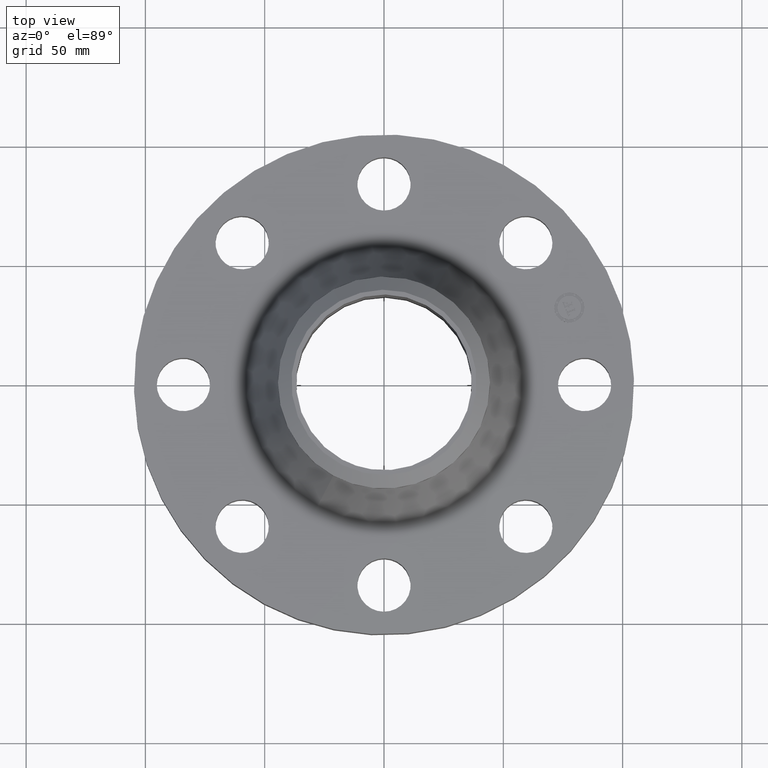
[diagram: clean part render]
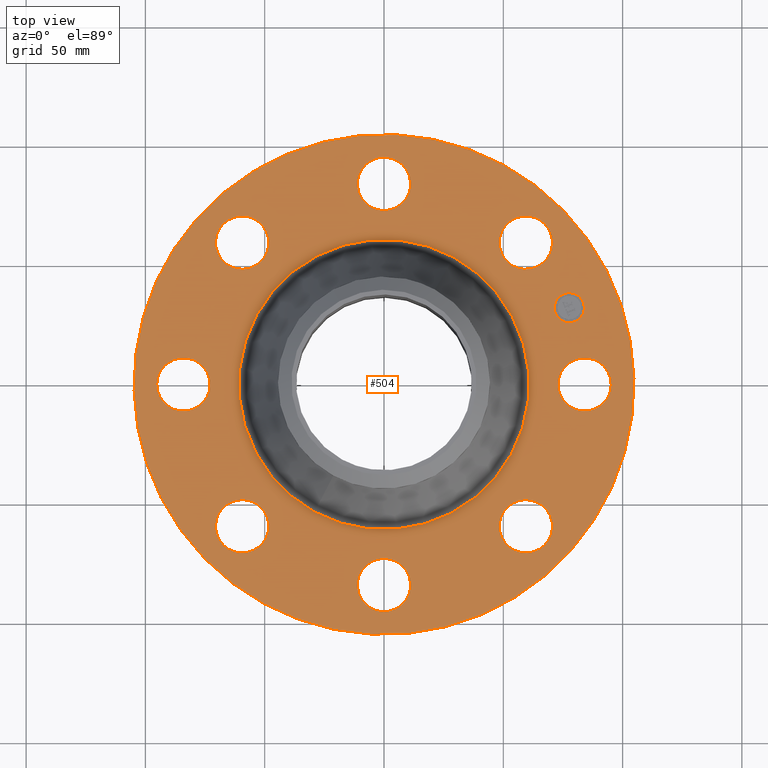
[diagram: same view with one face highlighted and labeled with its STEP entity id]
A machine part, top view. The second image highlights one B-rep face of the part: STEP entity #504.
In plain terms, the highlighted planar face has unit normal (0, 0, -1).
Its self-contained STEP definition (entity closure, byte-faithful):
#65=AXIS2_PLACEMENT_3D('Circle Axis2P3D',#63,#64,$) ;
#318=AXIS2_PLACEMENT_3D('Plane Axis2P3D',#315,#316,#317) ;
#322=AXIS2_PLACEMENT_3D('Circle Axis2P3D',#320,#321,$) ;
#331=AXIS2_PLACEMENT_3D('Circle Axis2P3D',#329,#330,$) ;
#344=AXIS2_PLACEMENT_3D('Circle Axis2P3D',#342,#343,$) ;
#353=AXIS2_PLACEMENT_3D('Circle Axis2P3D',#351,#352,$) ;
#362=AXIS2_PLACEMENT_3D('Circle Axis2P3D',#360,#361,$) ;
#371=AXIS2_PLACEMENT_3D('Circle Axis2P3D',#369,#370,$) ;
#380=AXIS2_PLACEMENT_3D('Circle Axis2P3D',#378,#379,$) ;
#389=AXIS2_PLACEMENT_3D('Circle Axis2P3D',#387,#388,$) ;
#398=AXIS2_PLACEMENT_3D('Circle Axis2P3D',#396,#397,$) ;
#407=AXIS2_PLACEMENT_3D('Circle Axis2P3D',#405,#406,$) ;
#416=AXIS2_PLACEMENT_3D('Circle Axis2P3D',#414,#415,$) ;
#425=AXIS2_PLACEMENT_3D('Circle Axis2P3D',#423,#424,$) ;
#434=AXIS2_PLACEMENT_3D('Circle Axis2P3D',#432,#433,$) ;
#443=AXIS2_PLACEMENT_3D('Circle Axis2P3D',#441,#442,$) ;
#452=AXIS2_PLACEMENT_3D('Circle Axis2P3D',#450,#451,$) ;
#461=AXIS2_PLACEMENT_3D('Circle Axis2P3D',#459,#460,$) ;
#470=AXIS2_PLACEMENT_3D('Circle Axis2P3D',#468,#469,$) ;
#479=AXIS2_PLACEMENT_3D('Circle Axis2P3D',#477,#478,$) ;
#488=AXIS2_PLACEMENT_3D('Circle Axis2P3D',#486,#487,$) ;
#497=AXIS2_PLACEMENT_3D('Circle Axis2P3D',#495,#496,$) ;
#46=CARTESIAN_POINT('Vertex',(2.92386367278,0.210947236987,1.05999999999)) ;
#60=CARTESIAN_POINT('Vertex',(3.69613632724,-0.210947236984,1.05999999999)) ;
#63=CARTESIAN_POINT('Axis2P3D Location',(3.31000000001,0.,1.05999999999)) ;
#106=CARTESIAN_POINT('Control Point',(3.69613632724,-0.210947236987,1.05999999999)) ;
#107=CARTESIAN_POINT('Control Point',(3.66300081274,-0.271601389433,1.05999999999)) ;
#108=CARTESIAN_POINT('Control Point',(3.61795588326,-0.325749398821,1.05999999999)) ;
#109=CARTESIAN_POINT('Control Point',(3.5626953225,-0.370262840224,1.05999999999)) ;
#110=CARTESIAN_POINT('Control Point',(3.43769808393,-0.435223603166,1.05999999999)) ;
#111=CARTESIAN_POINT('Control Point',(3.29741808449,-0.448097302225,1.05999999999)) ;
#112=CARTESIAN_POINT('Control Point',(3.22686721097,-0.440497941251,1.05999999999)) ;
#113=CARTESIAN_POINT('Control Point',(3.09254661997,-0.398045742217,1.05999999999)) ;
#114=CARTESIAN_POINT('Control Point',(2.98425060119,-0.307955883249,1.06)) ;
#115=CARTESIAN_POINT('Control Point',(2.93973715979,-0.252695322491,1.06)) ;
#116=CARTESIAN_POINT('Control Point',(2.87477639684,-0.127698083922,1.06)) ;
#117=CARTESIAN_POINT('Control Point',(2.86190269778,0.0125819155223,1.06)) ;
#118=CARTESIAN_POINT('Control Point',(2.86950205876,0.0831327890369,1.06)) ;
#119=CARTESIAN_POINT('Control Point',(2.89072815828,0.150293084541,1.06)) ;
#120=CARTESIAN_POINT('Control Point',(2.92386367278,0.210947236987,1.06)) ;
#315=CARTESIAN_POINT('Axis2P3D Location',(0.,4.12500000002,1.06)) ;
#320=CARTESIAN_POINT('Axis2P3D Location',(-1.1189649382E-015,5.33354637795E-012,1.06)) ;
#324=CARTESIAN_POINT('Vertex',(1.97763034678,3.62002806783,1.06)) ;
#326=CARTESIAN_POINT('Vertex',(-1.97763034675,-3.62002806781,1.06000000001)) ;
#329=CARTESIAN_POINT('Axis2P3D Location',(1.1189649382E-015,5.33466534289E-012,1.06)) ;
#342=CARTESIAN_POINT('Axis2P3D Location',(0.,5.33410586042E-012,1.06)) ;
#346=CARTESIAN_POINT('Vertex',(-1.1482394859,-2.10183828053,1.06)) ;
#348=CARTESIAN_POINT('Vertex',(1.1482394859,2.10183828052,1.06)) ;
#351=CARTESIAN_POINT('Axis2P3D Location',(0.,5.33410586042E-012,1.06)) ;
#360=CARTESIAN_POINT('Axis2P3D Location',(2.34052344574,-2.34052344573,1.06)) ;
#364=CARTESIAN_POINT('Vertex',(2.46440083947,-2.76272528291,1.06)) ;
#366=CARTESIAN_POINT('Vertex',(2.21664605204,-1.91832160854,1.05999999999)) ;
#369=CARTESIAN_POINT('Axis2P3D Location',(2.34052344572,-2.34052344574,1.06)) ;
#378=CARTESIAN_POINT('Axis2P3D Location',(3.49676543189E-017,-3.31000000003,1.06)) ;
#382=CARTESIAN_POINT('Vertex',(-0.210947236984,-3.69613632724,1.05999999999)) ;
#384=CARTESIAN_POINT('Vertex',(0.210947236987,-2.92386367278,1.05999999999)) ;
#387=CARTESIAN_POINT('Axis2P3D Location',(-3.49676543189E-017,-3.31000000003,1.06)) ;
#396=CARTESIAN_POINT('Axis2P3D Location',(-2.34052344574,-2.34052344573,1.06)) ;
#400=CARTESIAN_POINT('Vertex',(-2.76272528292,-2.46440083947,1.06)) ;
#402=CARTESIAN_POINT('Vertex',(-1.91832160854,-2.21664605204,1.05999999999)) ;
#405=CARTESIAN_POINT('Axis2P3D Location',(-2.34052344574,-2.34052344573,1.06)) ;
#414=CARTESIAN_POINT('Axis2P3D Location',(-3.30999999999,1.81456949204E-011,1.06)) ;
#418=CARTESIAN_POINT('Vertex',(-3.69613632724,0.210947236984,1.05999999999)) ;
#420=CARTESIAN_POINT('Vertex',(-2.92386367278,-0.210947236987,1.05999999999)) ;
#423=CARTESIAN_POINT('Axis2P3D Location',(-3.31000000001,-7.47748319955E-012,1.06)) ;
#432=CARTESIAN_POINT('Axis2P3D Location',(-2.34052344574,2.34052344574,1.06)) ;
#436=CARTESIAN_POINT('Vertex',(-2.46440083947,2.76272528292,1.06)) ;
#438=CARTESIAN_POINT('Vertex',(-2.21664605204,1.91832160854,1.05999999999)) ;
#441=CARTESIAN_POINT('Axis2P3D Location',(-2.34052344574,2.34052344574,1.06)) ;
#450=CARTESIAN_POINT('Axis2P3D Location',(1.28117289306E-011,3.31,1.06)) ;
#454=CARTESIAN_POINT('Vertex',(0.210947236984,3.69613632724,1.05999999999)) ;
#456=CARTESIAN_POINT('Vertex',(-0.210947236987,2.92386367278,1.05999999999)) ;
#459=CARTESIAN_POINT('Axis2P3D Location',(-1.28117289306E-011,3.31000000001,1.06)) ;
#468=CARTESIAN_POINT('Axis2P3D Location',(2.34052344574,2.34052344574,1.06)) ;
#472=CARTESIAN_POINT('Vertex',(2.76272528292,2.46440083948,1.06)) ;
#474=CARTESIAN_POINT('Vertex',(1.91832160854,2.21664605204,1.05999999999)) ;
#477=CARTESIAN_POINT('Axis2P3D Location',(2.34052344574,2.34052344574,1.06)) ;
#486=CARTESIAN_POINT('Axis2P3D Location',(3.05804125264,1.26668216115,1.06)) ;
#490=CARTESIAN_POINT('Vertex',(2.96332710313,1.49534234543,1.06)) ;
#492=CARTESIAN_POINT('Vertex',(3.15275540216,1.03802197687,1.06)) ;
#495=CARTESIAN_POINT('Axis2P3D Location',(3.05804125258,1.26668216112,1.06)) ;
#64=DIRECTION('Axis2P3D Direction',(0.,-0.,-0.0393700787402)) ;
#316=DIRECTION('Axis2P3D Direction',(0.,0.,-0.0393700787402)) ;
#317=DIRECTION('Axis2P3D XDirection',(0.0393700787402,0.,0.)) ;
#321=DIRECTION('Axis2P3D Direction',(0.,0.,-0.0393700787402)) ;
#330=DIRECTION('Axis2P3D Direction',(0.,0.,-0.0393700787402)) ;
#343=DIRECTION('Axis2P3D Direction',(0.,0.,-0.0393700787402)) ;
#352=DIRECTION('Axis2P3D Direction',(0.,0.,-0.0393700787402)) ;
#361=DIRECTION('Axis2P3D Direction',(0.,0.,-0.0393700787402)) ;
#370=DIRECTION('Axis2P3D Direction',(0.,0.,-0.0393700787402)) ;
#379=DIRECTION('Axis2P3D Direction',(0.,0.,-0.0393700787402)) ;
#388=DIRECTION('Axis2P3D Direction',(0.,0.,-0.0393700787402)) ;
#397=DIRECTION('Axis2P3D Direction',(0.,0.,-0.0393700787402)) ;
#406=DIRECTION('Axis2P3D Direction',(0.,0.,-0.0393700787402)) ;
#415=DIRECTION('Axis2P3D Direction',(0.,0.,-0.0393700787402)) ;
#424=DIRECTION('Axis2P3D Direction',(0.,0.,-0.0393700787402)) ;
#433=DIRECTION('Axis2P3D Direction',(0.,0.,-0.0393700787402)) ;
#442=DIRECTION('Axis2P3D Direction',(0.,0.,-0.0393700787402)) ;
#451=DIRECTION('Axis2P3D Direction',(0.,0.,-0.0393700787402)) ;
#460=DIRECTION('Axis2P3D Direction',(0.,0.,-0.0393700787402)) ;
#469=DIRECTION('Axis2P3D Direction',(0.,0.,-0.0393700787402)) ;
#478=DIRECTION('Axis2P3D Direction',(0.,0.,-0.0393700787402)) ;
#487=DIRECTION('Axis2P3D Direction',(0.,0.,-0.0393700787402)) ;
#496=DIRECTION('Axis2P3D Direction',(0.,0.,-0.0393700787402)) ;
#335=ORIENTED_EDGE('',*,*,#328,.F.) ;
#336=ORIENTED_EDGE('',*,*,#333,.F.) ;
#339=ORIENTED_EDGE('',*,*,#67,.T.) ;
#340=ORIENTED_EDGE('',*,*,#121,.T.) ;
#357=ORIENTED_EDGE('',*,*,#350,.T.) ;
#358=ORIENTED_EDGE('',*,*,#355,.T.) ;
#375=ORIENTED_EDGE('',*,*,#368,.T.) ;
#376=ORIENTED_EDGE('',*,*,#373,.T.) ;
#393=ORIENTED_EDGE('',*,*,#386,.T.) ;
#394=ORIENTED_EDGE('',*,*,#391,.T.) ;
#411=ORIENTED_EDGE('',*,*,#404,.T.) ;
#412=ORIENTED_EDGE('',*,*,#409,.T.) ;
#429=ORIENTED_EDGE('',*,*,#422,.T.) ;
#430=ORIENTED_EDGE('',*,*,#427,.T.) ;
#447=ORIENTED_EDGE('',*,*,#440,.T.) ;
#448=ORIENTED_EDGE('',*,*,#445,.T.) ;
#465=ORIENTED_EDGE('',*,*,#458,.T.) ;
#466=ORIENTED_EDGE('',*,*,#463,.T.) ;
#483=ORIENTED_EDGE('',*,*,#476,.T.) ;
#484=ORIENTED_EDGE('',*,*,#481,.T.) ;
#501=ORIENTED_EDGE('',*,*,#494,.T.) ;
#502=ORIENTED_EDGE('',*,*,#499,.T.) ;
#341=FACE_BOUND('',#338,.T.) ;
#359=FACE_BOUND('',#356,.T.) ;
#377=FACE_BOUND('',#374,.T.) ;
#395=FACE_BOUND('',#392,.T.) ;
#413=FACE_BOUND('',#410,.T.) ;
#431=FACE_BOUND('',#428,.T.) ;
#449=FACE_BOUND('',#446,.T.) ;
#467=FACE_BOUND('',#464,.T.) ;
#485=FACE_BOUND('',#482,.T.) ;
#503=FACE_BOUND('',#500,.T.) ;
#504=ADVANCED_FACE('PartBody',(#337,#341,#359,#377,#395,#413,#431,#449,#467,#485,#503),#319,.F.) ;
#105=B_SPLINE_CURVE_WITH_KNOTS('',5,(#106,#107,#108,#109,#110,#111,#112,#113,#114,#115,#116,#117,#118,#119,#120),.UNSPECIFIED.,.F.,.U.,(6,3,3,3,6),(-17.5552197483,-8.77760987417,0.,8.77760987417,17.5552197483),.UNSPECIFIED.) ;
#66=CIRCLE('generated circle',#65,0.440000000002) ;
#323=CIRCLE('generated circle',#322,4.12500000004) ;
#332=CIRCLE('generated circle',#331,4.12500000004) ;
#345=CIRCLE('generated circle',#344,2.39503195686) ;
#354=CIRCLE('generated circle',#353,2.39503195686) ;
#363=CIRCLE('generated circle',#362,0.439999999995) ;
#372=CIRCLE('generated circle',#371,0.439999999995) ;
#381=CIRCLE('generated circle',#380,0.44000000002) ;
#390=CIRCLE('generated circle',#389,0.44000000002) ;
#399=CIRCLE('generated circle',#398,0.439999999995) ;
#408=CIRCLE('generated circle',#407,0.439999999995) ;
#417=CIRCLE('generated circle',#416,0.439999999988) ;
#426=CIRCLE('generated circle',#425,0.439999999988) ;
#435=CIRCLE('generated circle',#434,0.439999999995) ;
#444=CIRCLE('generated circle',#443,0.439999999995) ;
#453=CIRCLE('generated circle',#452,0.439999999988) ;
#462=CIRCLE('generated circle',#461,0.439999999988) ;
#471=CIRCLE('generated circle',#470,0.439999999995) ;
#480=CIRCLE('generated circle',#479,0.439999999995) ;
#489=CIRCLE('generated circle',#488,0.247499999989) ;
#498=CIRCLE('generated circle',#497,0.247499999989) ;
#67=EDGE_CURVE('',#47,#61,#66,.T.) ;
#121=EDGE_CURVE('',#61,#47,#105,.T.) ;
#328=EDGE_CURVE('',#325,#327,#323,.T.) ;
#333=EDGE_CURVE('',#327,#325,#332,.T.) ;
#350=EDGE_CURVE('',#347,#349,#345,.T.) ;
#355=EDGE_CURVE('',#349,#347,#354,.T.) ;
#368=EDGE_CURVE('',#365,#367,#363,.T.) ;
#373=EDGE_CURVE('',#367,#365,#372,.T.) ;
#386=EDGE_CURVE('',#383,#385,#381,.T.) ;
#391=EDGE_CURVE('',#385,#383,#390,.T.) ;
#404=EDGE_CURVE('',#401,#403,#399,.T.) ;
#409=EDGE_CURVE('',#403,#401,#408,.T.) ;
#422=EDGE_CURVE('',#419,#421,#417,.T.) ;
#427=EDGE_CURVE('',#421,#419,#426,.T.) ;
#440=EDGE_CURVE('',#437,#439,#435,.T.) ;
#445=EDGE_CURVE('',#439,#437,#444,.T.) ;
#458=EDGE_CURVE('',#455,#457,#453,.T.) ;
#463=EDGE_CURVE('',#457,#455,#462,.T.) ;
#476=EDGE_CURVE('',#473,#475,#471,.T.) ;
#481=EDGE_CURVE('',#475,#473,#480,.T.) ;
#494=EDGE_CURVE('',#491,#493,#489,.T.) ;
#499=EDGE_CURVE('',#493,#491,#498,.T.) ;
#334=EDGE_LOOP('',(#335,#336)) ;
#338=EDGE_LOOP('',(#339,#340)) ;
#356=EDGE_LOOP('',(#357,#358)) ;
#374=EDGE_LOOP('',(#375,#376)) ;
#392=EDGE_LOOP('',(#393,#394)) ;
#410=EDGE_LOOP('',(#411,#412)) ;
#428=EDGE_LOOP('',(#429,#430)) ;
#446=EDGE_LOOP('',(#447,#448)) ;
#464=EDGE_LOOP('',(#465,#466)) ;
#482=EDGE_LOOP('',(#483,#484)) ;
#500=EDGE_LOOP('',(#501,#502)) ;
#337=FACE_OUTER_BOUND('',#334,.T.) ;
#319=PLANE('',#318) ;
#47=VERTEX_POINT('',#46) ;
#61=VERTEX_POINT('',#60) ;
#325=VERTEX_POINT('',#324) ;
#327=VERTEX_POINT('',#326) ;
#347=VERTEX_POINT('',#346) ;
#349=VERTEX_POINT('',#348) ;
#365=VERTEX_POINT('',#364) ;
#367=VERTEX_POINT('',#366) ;
#383=VERTEX_POINT('',#382) ;
#385=VERTEX_POINT('',#384) ;
#401=VERTEX_POINT('',#400) ;
#403=VERTEX_POINT('',#402) ;
#419=VERTEX_POINT('',#418) ;
#421=VERTEX_POINT('',#420) ;
#437=VERTEX_POINT('',#436) ;
#439=VERTEX_POINT('',#438) ;
#455=VERTEX_POINT('',#454) ;
#457=VERTEX_POINT('',#456) ;
#473=VERTEX_POINT('',#472) ;
#475=VERTEX_POINT('',#474) ;
#491=VERTEX_POINT('',#490) ;
#493=VERTEX_POINT('',#492) ;